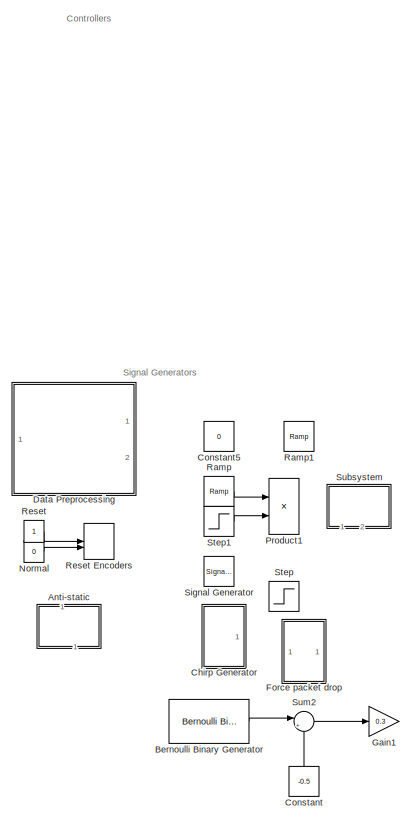
[diagram: root canvas - part 1/2, left side, full height]
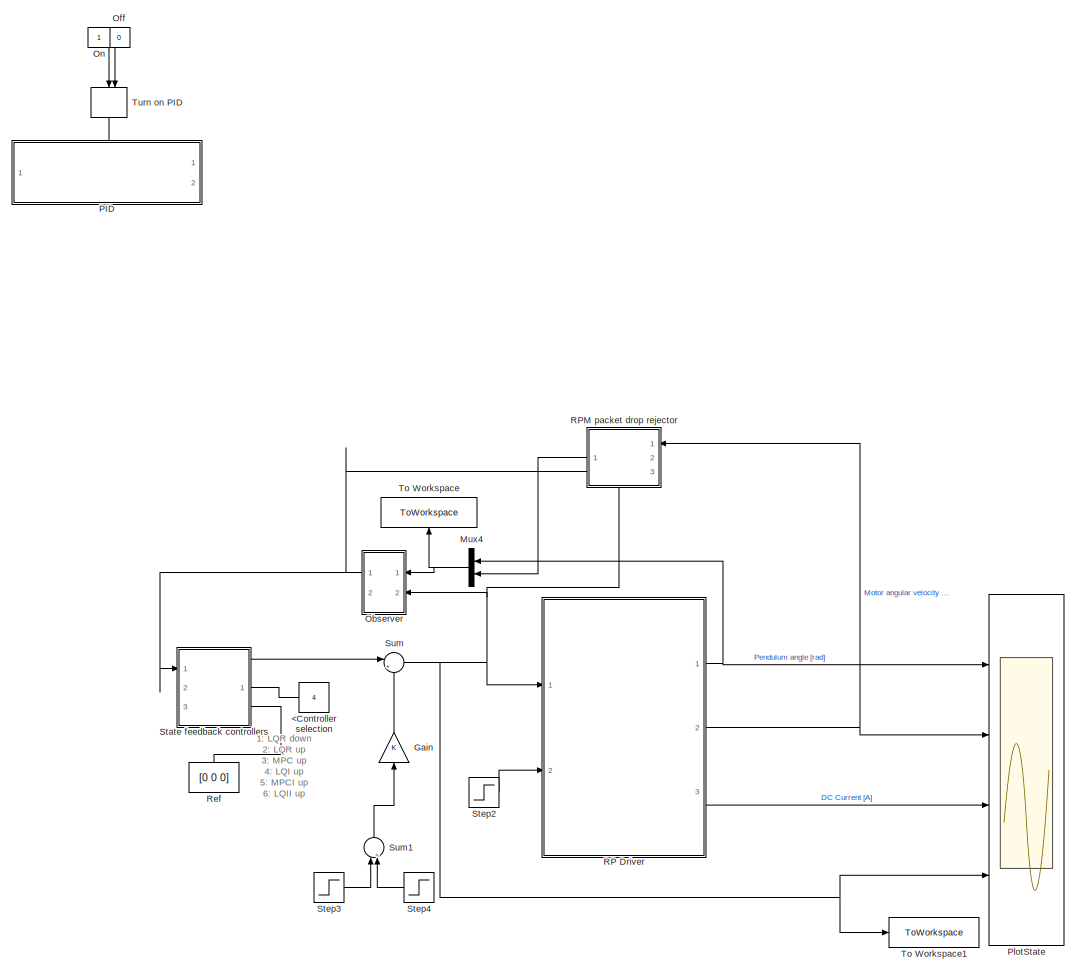
[diagram: root canvas - part 2/2, center side, full height]
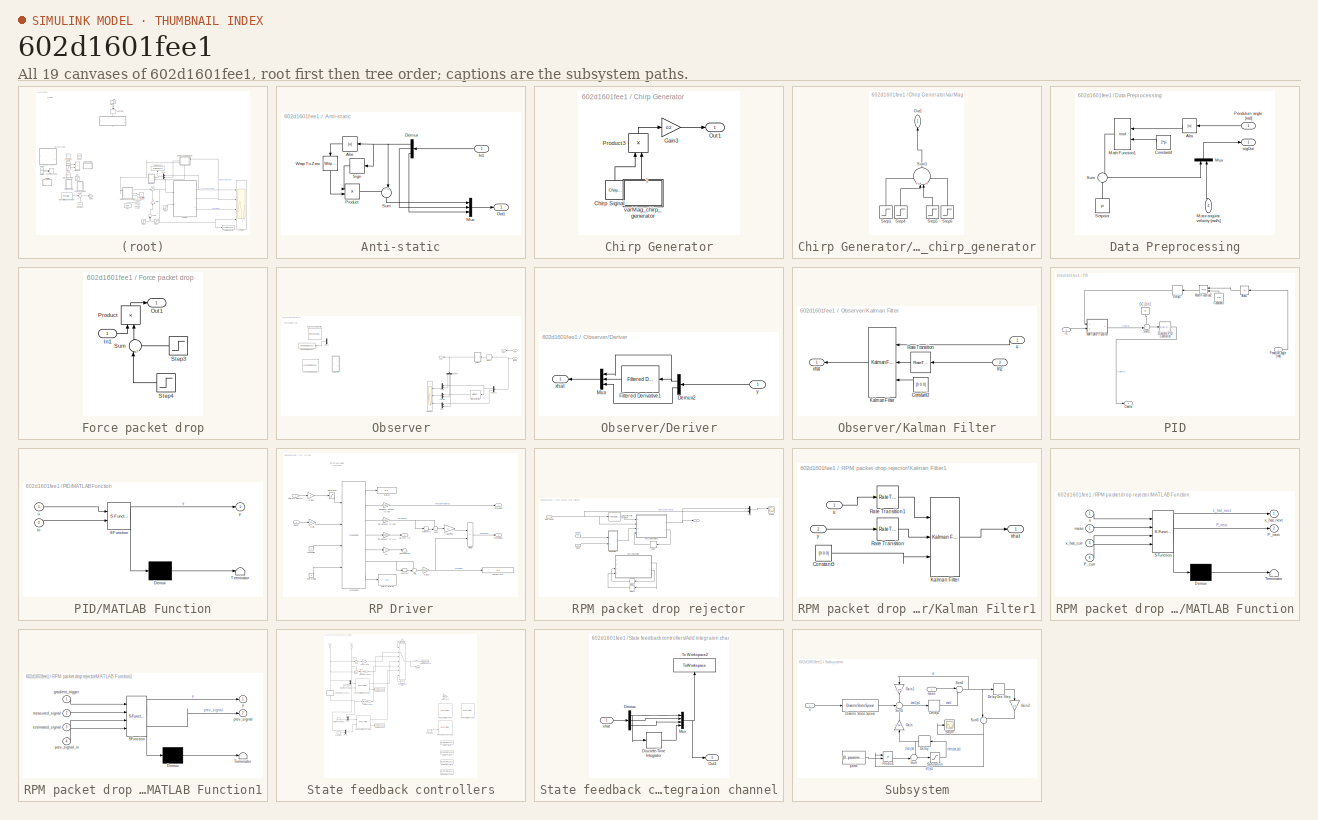
[diagram: thumbnail index - all 19 canvases of the model, root first then tree order]
MODEL slx_602d1601fee1
KIND model
CONFIG AbsTol = auto
CONFIG EnableMultiTasking = on
CONFIG FixedStep = h
CONFIG InitFcn = hwinit
CONFIG MaxStep = auto
CONFIG MinStep = auto
CONFIG PreLoadFcn = warning('off','MATLAB:dispatcher:InexactMatch');\n\n
CONFIG RelTol = 1e-3
CONFIG SampleTimeConstraint = Unconstrained
CONFIG SolverName = FixedStepDiscrete
CONFIG StartTime = 0.0
CONFIG StopTime = 140
BLOCK [Constant] <Controller selection
  NameLocation = top
  Value = 4
BLOCK [SubSystem] Anti-static
  Commented = through
  NameLocation = left
  Ports = [1, 1]
  RequestExecContextInheritance = off
BLOCK [Abs] Anti-static/Abs
  NameLocation = top
  SaturateOnIntegerOverflow = off
BLOCK [Demux] Anti-static/Demux
  NameLocation = top
  Outputs = 3
  Ports = [1, 3]
BLOCK [Inport] Anti-static/In1
BLOCK [Mux] Anti-static/Mux
  DisplayOption = bar
  Inputs = 3
  Ports = [3, 1]
BLOCK [Outport] Anti-static/Out1
BLOCK [Product] Anti-static/Product
  Ports = [2, 1]
BLOCK [Signum] Anti-static/Sign
  NameLocation = top
BLOCK [Sum] Anti-static/Sum
  Inputs = -+|
  NameLocation = left
  Ports = [2, 1]
BLOCK [Reference] Anti-static/Wrap To Zero  REF=simulink/Discontinuities/Wrap To Zero
  NameLocation = left
  Ports = [1, 1]
  SourceBlock = simulink/Discontinuities/Wrap To Zero
  SourceProductBaseCode = SL
  SourceType = Wrap To Zero
BLOCK [Reference] Bernoulli Binary Generator  REF=commrandsrc3/Bernoulli Binary
Generator
  Commented = on
  Ports = [0, 1]
  SourceBlock = commrandsrc3/Bernoulli Binary\nGenerator
  SourceProductBaseCode = CM
  SourceType = Bernoulli Binary Generator
BLOCK [SubSystem] Chirp Generator
  Commented = on
  Ports = [0, 1]
  RequestExecContextInheritance = off
BLOCK [Reference] Chirp Generator/Chirp Signal  REF=simulink/Sources/Chirp Signal
  NameLocation = right
  Ports = [0, 1]
  SourceBlock = simulink/Sources/Chirp Signal
  SourceProductBaseCode = SL
  SourceType = chirp
BLOCK [Gain] Chirp Generator/Gain3
  Gain = 0.2
BLOCK [Outport] Chirp Generator/Out1
BLOCK [Product] Chirp Generator/Product3
  NameLocation = right
  Ports = [2, 1]
BLOCK [SubSystem] Chirp Generator/varMag_chirp_generator
  NameLocation = right
  Ports = [0, 1]
  RequestExecContextInheritance = off
BLOCK [Outport] Chirp Generator/varMag_chirp_generator/Out1
  NameLocation = right
BLOCK [Step] Chirp Generator/varMag_chirp_generator/Step1
  After = 0.3
  Before = 1
  NameLocation = right
  SampleTime = h
  Time = 45
BLOCK [Step] Chirp Generator/varMag_chirp_generator/Step4
  After = 0.7
  NameLocation = right
  SampleTime = h
  Time = 50
BLOCK [Step] Chirp Generator/varMag_chirp_generator/Step5
  After = -0.6
  NameLocation = right
  SampleTime = h
  Time = 60
BLOCK [Step] Chirp Generator/varMag_chirp_generator/Step6
  After = 0
  NameLocation = right
  SampleTime = h
  Time = 65
BLOCK [Sum] Chirp Generator/varMag_chirp_generator/Sum1
  Inputs = ++|++
  NameLocation = right
  Ports = [4, 1]
BLOCK [Constant] Constant
  Commented = on
  NameLocation = right
  Value = -0.5
BLOCK [Constant] Constant5
  Commented = on
  Value = 0
BLOCK [SubSystem] Data Preprocessing
  Commented = on
  NameLocation = top
  Ports = [2, 1]
  RequestExecContextInheritance = off
BLOCK [Abs] Data Preprocessing/Abs
  NameLocation = top
  SaturateOnIntegerOverflow = off
BLOCK [Constant] Data Preprocessing/Constant4
  NameLocation = top
  Value = 2*pi
BLOCK [Math] Data Preprocessing/Math Function1
  NameLocation = top
  Operator = mod
  Ports = [2, 1]
BLOCK [Inport] Data Preprocessing/Motor angular velocity [rad//s]
  NameLocation = right
  Port = 2
BLOCK [Mux] Data Preprocessing/Mux
  DisplayOption = bar
  Inputs = 2
  NameLocation = right
  Ports = [2, 1]
BLOCK [Inport] Data Preprocessing/Pendulum angle [rad]
  NameLocation = top
BLOCK [Constant] Data Preprocessing/Setpoint
  NameLocation = right
  Value = pi
BLOCK [Sum] Data Preprocessing/Sum
  Inputs = -||+
  Ports = [2, 1]
BLOCK [Outport] Data Preprocessing/sigOut
BLOCK [SubSystem] Force packet drop
  Commented = through
  NameLocation = top
  Ports = [1, 1]
  RequestExecContextInheritance = off
BLOCK [Inport] Force packet drop/In1
BLOCK [Outport] Force packet drop/Out1
BLOCK [Product] Force packet drop/Product
  NameLocation = right
  Ports = [2, 1]
BLOCK [Step] Force packet drop/Step3
  NameLocation = top
  SampleTime = 0
  Time = 10+7*h
BLOCK [Step] Force packet drop/Step4
  After = 0
  Before = 1
  NameLocation = top
  SampleTime = 0
  Time = 10
BLOCK [Sum] Force packet drop/Sum
  Inputs = |++
  NameLocation = right
  Ports = [2, 1]
BLOCK [Gain] Gain
  NameLocation = right
BLOCK [Gain] Gain1
  Commented = on
  Gain = 0.3
BLOCK [Mux] Mux4
  DisplayOption = bar
  Inputs = 2
  NameLocation = top
  Ports = [2, 1]
BLOCK [Constant] Normal
  Commented = on
  Value = 0
BLOCK [SubSystem] Observer
  Ports = [2, 2]
  RequestExecContextInheritance = off
BLOCK [Delay] Observer/Delay1
  DelayLength = 1
  InitialCondition = 0
  InputPortMap = u0
  NameLocation = top
  Ports = [1, 1]
BLOCK [Demux] Observer/Demux
  NameLocation = left
  Outputs = 3
  Ports = [1, 3]
BLOCK [Demux] Observer/Demux1
  NameLocation = top
  Outputs = 2
  Ports = [1, 2]
BLOCK [SubSystem] Observer/Deriver
  NameLocation = top
  Ports = [1, 1]
  RequestExecContextInheritance = off
BLOCK [Demux] Observer/Deriver/Demux2
  NameLocation = top
  Outputs = 2
  Ports = [1, 2]
BLOCK [Reference] Observer/Deriver/Filtered Derivative1  REF=eeGeneralControl/Filtered Derivative
(Discrete or Continuous)
  Ports = [1, 1]
  SourceBlock = eeGeneralControl/Filtered Derivative\n(Discrete or Continuous)
  SourceProductBaseCode = PS
  SourceType = Filtered Derivative (Discrete or Continuous)
BLOCK [Mux] Observer/Deriver/Mux
  DisplayOption = bar
  Inputs = 3
  NameLocation = top
  Ports = [3, 1]
BLOCK [Outport] Observer/Deriver/xhat
BLOCK [Inport] Observer/Deriver/y
BLOCK [DiscreteStateSpace] Observer/Discrete State-Space
  A = sysObserver.A
  B = sysObserver.B
  C = sysObserver.C
  Commented = on
  D = sysObserver.D
  NameLocation = top
  SampleTime = h
BLOCK [Reference] Observer/Extended Kalman Filter  REF=sharedTrackingLibrary/Extended Kalman Filter
  Commented = on
  Ports = [1, 1]
  SourceBlock = sharedTrackingLibrary/Extended Kalman Filter
  SourceProductBaseCode = AE,PW,CT,DR,TF,ID,LP,NV,AR,RO,RR,UV,VE
  SourceType = Extended Kalman Filter
BLOCK [Reference] Observer/Filtered Derivative  REF=eeGeneralControl/Filtered Derivative
(Discrete or Continuous)
  Ports = [1, 1]
  SourceBlock = eeGeneralControl/Filtered Derivative\n(Discrete or Continuous)
  SourceProductBaseCode = PS
  SourceType = Filtered Derivative (Discrete or Continuous)
BLOCK [SubSystem] Observer/Kalman Filter
  Commented = on
  NameLocation = top
  Ports = [2, 1]
  RequestExecContextInheritance = off
BLOCK [Constant] Observer/Kalman Filter/Constant3
  NameLocation = top
  SampleTime = h
  Value = [0 0 0]
BLOCK [Inport] Observer/Kalman Filter/In2
  Port = 2
BLOCK [Reference] Observer/Kalman Filter/Kalman Filter  REF=ctrlSharedLib/Kalman Filter
  NameLocation = top
  Ports = [3, 1]
  SourceBlock = ctrlSharedLib/Kalman Filter
  SourceProductBaseCode = CT,ID
  SourceType = ctrlKalmanFilter
BLOCK [RateTransition] Observer/Kalman Filter/Rate Transition
  NameLocation = top
  OutPortSampleTime = h
BLOCK [Inport] Observer/Kalman Filter/u
BLOCK [Outport] Observer/Kalman Filter/xhat
BLOCK [Reference] Observer/Luenberger Observer  REF=eeLuenbergerObserver/Luenberger Observer
  Commented = on
  NameLocation = top
  Ports = [2, 1]
  SourceBlock = eeLuenbergerObserver/Luenberger Observer
  SourceProductBaseCode = PS
  SourceType = Luenberger Observer
BLOCK [Mux] Observer/Mux1
  Commented = on
  DisplayOption = bar
  Inputs = 2
  NameLocation = top
  Ports = [2, 1]
BLOCK [Scope] Observer/Observer
  Commented = on
  Floating = off
  NameLocation = top
  NumInputPorts = 3
  Ports = [3]
  ScopeSpecificationString = Simulink.scopes.TimeScopeBlockCfg('CurrentConfiguration', extmgr.ConfigurationSet(extmgr.Configuration('Core','General UI',true),extmgr.Configuration('Core','Source UI',true),extmgr.Configuration('Sources','WiredSimulink',true,'DataLoggingVariableName','ScopeData1'),extmgr.Configuration('Visuals','Time Domain',true,'SerializedDisplays',{struct('MinYLimReal','-1.59444','MaxYLimReal','1.24635','YLab...<+2735ch>
BLOCK [Mux] Observer/Theta
  DisplayOption = bar
  Inputs = 2
  NameLocation = top
  Ports = [2, 1]
BLOCK [Mux] Observer/dPhi
  DisplayOption = bar
  Inputs = 2
  NameLocation = top
  Ports = [2, 1]
BLOCK [Mux] Observer/dTheta
  DisplayOption = bar
  Inputs = 2
  NameLocation = top
  Ports = [2, 1]
BLOCK [Inport] Observer/meas
BLOCK [Inport] Observer/u
  Port = 2
BLOCK [Outport] Observer/uOut
  NameLocation = top
  Port = 2
BLOCK [Outport] Observer/xhat
  NameLocation = top
BLOCK [Constant] Off
  Commented = on
  NameLocation = top
  Value = 0
BLOCK [Constant] On
  Commented = on
  NameLocation = top
BLOCK [SubSystem] PID
  Commented = on
  PortSchema = {"entries":[{"content":{"sides":[{"content":{"connectorIds":["In1"]},"type":"ConnectorPlacement.EquallySpacedRectSide","uuid":"f2fec2e3-226e-4957-a417-0defdc291ba5"},{"content":{"connectorIds":["Out1"],"side":"RIGHT"},"type":"ConnectorPlacement.EquallySpacedRectSide","uuid":"376d4e87-61ea-4bcd-a986-cfc18b67c5cf"},{"content":{"connectorIds":["In2"],"side":"TOP"},"type":"ConnectorPlacement.EquallySp...<+245ch>
  Ports = [2, 1]
  RequestExecContextInheritance = off
BLOCK [Abs] PID/Abs1
  NameLocation = top
  SaturateOnIntegerOverflow = off
BLOCK [Constant] PID/Constant3
  NameLocation = right
  Value = 2*pi
BLOCK [Outport] PID/Control
BLOCK [Constant] PID/DC_Ctrl1
  NameLocation = left
  Value = pi
BLOCK [Delay] PID/Delay1
  DelayLength = 1
  InitialCondition = 0
  InputPortMap = u0
  NameLocation = top
  Ports = [1, 1]
BLOCK [Reference] PID/Discrete PID Controller  REF=pid_lib/PID Controller
  Ports = [1, 1]
  SourceBlock = pid_lib/PID Controller
  SourceProductBaseCode = SL
  SourceType = PID 1dof
BLOCK [SubSystem] PID/MATLAB Function
  ErrorFcn = Stateflow.Translate.translate
  PermitHierarchicalResolution = ExplicitOnly
  Ports = [2, 1]
  RequestExecContextInheritance = off
  SFBlockType = MATLAB Function
  TreatAsAtomicUnit = on
BLOCK [Demux] PID/MATLAB Function/ Demux 
  Outputs = 1
  Ports = [1, 1]
BLOCK [S-Function] PID/MATLAB Function/ SFunction 
  EnableBusSupport = on
  FunctionName = sf_sfun
  PortCounts = [2 2]
  Ports = [2, 2]
  SFcnIsStateOwnerBlock = off
  SFunctionDeploymentMode = off
  Tag = Stateflow S-Function 1
BLOCK [Terminator] PID/MATLAB Function/ Terminator 
BLOCK [Inport] PID/MATLAB Function/io
  Port = 2
BLOCK [Inport] PID/MATLAB Function/u
BLOCK [Outport] PID/MATLAB Function/y
BLOCK [Math] PID/Math Function2
  NameLocation = top
  Operator = mod
  Ports = [2, 1]
BLOCK [Inport] PID/Pendulum angle [rad]
BLOCK [Sum] PID/Sum1
  Inputs = +-|
  Ports = [2, 1]
BLOCK [Inport] PID/io
  Port = 2
BLOCK [Scope] PlotState
  Floating = off
  NumInputPorts = 4
  Ports = [4]
  ScopeSpecificationString = Simulink.scopes.TimeScopeBlockCfg('CurrentConfiguration', extmgr.ConfigurationSet(extmgr.Configuration('Core','General UI',true),extmgr.Configuration('Core','Source UI',true),extmgr.Configuration('Sources','WiredSimulink',true,'DataLoggingVariableName','StateData','DataLoggingSaveFormat','StructureWithTime','DataLoggingMaxPoints','12000','DataLoggingDecimation','1','DataLoggingDecimateData',true),...<+3724ch>
BLOCK [Product] Product1
  Commented = on
  Ports = [2, 1]
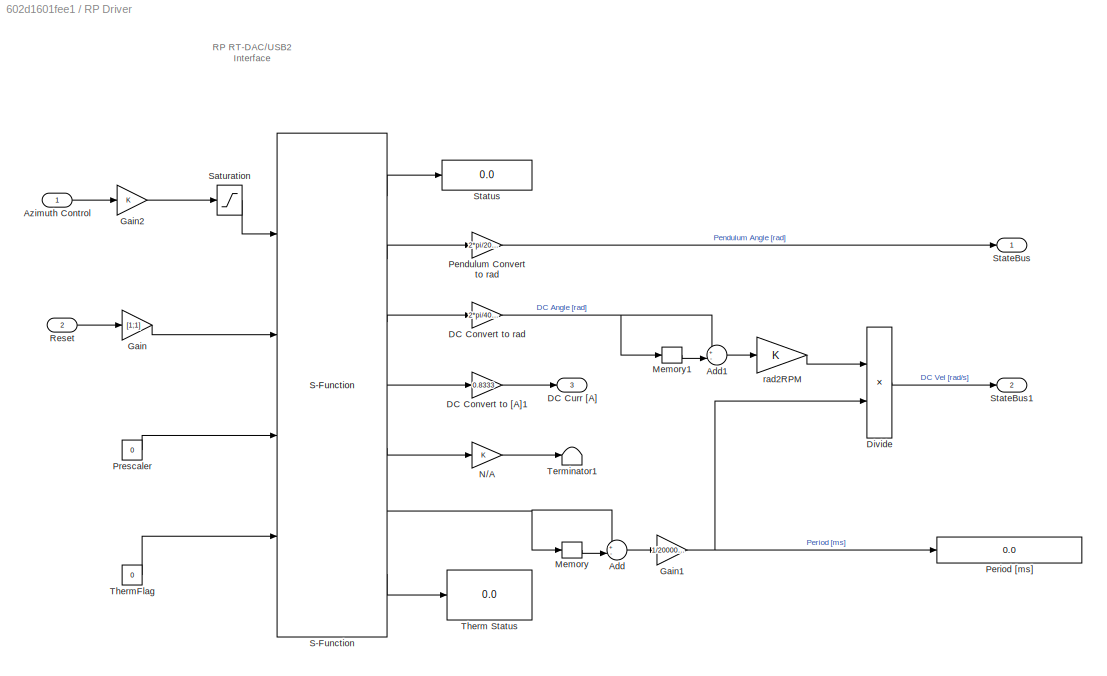
BLOCK [SubSystem] RP Driver
  Ports = [2, 3]
  RequestExecContextInheritance = off
BLOCK [Sum] RP Driver/Add
  Inputs = +-|
  Ports = [2, 1]
BLOCK [Sum] RP Driver/Add1
  Inputs = +-|
  Ports = [2, 1]
BLOCK [Inport] RP Driver/Azimuth Control
BLOCK [Gain] RP Driver/DC Convert to [A]1
  Gain = 0.8333
  OutDataTypeStr = Inherit: Same as input
  ParamDataTypeStr = Inherit: Same as input
  SaturateOnIntegerOverflow = on
BLOCK [Gain] RP Driver/DC Convert to rad
  Gain = 2*pi/4096
  OutDataTypeStr = Inherit: Same as input
  ParamDataTypeStr = Inherit: Same as input
  SaturateOnIntegerOverflow = on
BLOCK [Outport] RP Driver/DC Curr [A]
  Port = 3
  VectorParamsAs1DForOutWhenUnconnected = off
BLOCK [Product] RP Driver/Divide
  Inputs = */
  Ports = [2, 1]
BLOCK [Gain] RP Driver/Gain
  Gain = [1;1]
BLOCK [Gain] RP Driver/Gain1
  Gain = 1/20000000
BLOCK [Gain] RP Driver/Gain2
BLOCK [Memory] RP Driver/Memory
  NameLocation = top
BLOCK [Memory] RP Driver/Memory1
  NameLocation = top
BLOCK [Gain] RP Driver/N//A
  OutDataTypeStr = Inherit: Same as input
  ParamDataTypeStr = Inherit: Same as input
  SaturateOnIntegerOverflow = on
BLOCK [Gain] RP Driver/Pendulum Convert to rad
  Gain = 2*pi/20000
  OutDataTypeStr = Inherit: Same as input
  ParamDataTypeStr = Inherit: Same as input
  SaturateOnIntegerOverflow = on
BLOCK [Display] RP Driver/Period [ms]
  Decimation = 1
  Format = long
  Ports = [1]
BLOCK [Constant] RP Driver/Prescaler
  Value = 0
BLOCK [Inport] RP Driver/Reset
  Port = 2
BLOCK [S-Function] RP Driver/S-Function
  EnableBusSupport = off
  FunctionName = rtdacusb2_rpend_dd
  Parameters = 1, h
  Ports = [4, 7]
  SFcnIsStateOwnerBlock = off
  SFunctionDeploymentMode = off
BLOCK [Saturate] RP Driver/Saturation
  LowerLimit = -1
  UpperLimit = 1
BLOCK [Outport] RP Driver/StateBus
  VectorParamsAs1DForOutWhenUnconnected = off
BLOCK [Outport] RP Driver/StateBus1
  Port = 2
  VectorParamsAs1DForOutWhenUnconnected = off
BLOCK [Display] RP Driver/Status
  Decimation = 1
  Ports = [1]
BLOCK [Terminator] RP Driver/Terminator1
BLOCK [Display] RP Driver/Therm Status
  Decimation = 1
  Ports = [1]
BLOCK [Constant] RP Driver/ThermFlag
  Value = 0
BLOCK [Gain] RP Driver/rad2RPM
  OutDataTypeStr = Inherit: Same as input
  ParamDataTypeStr = Inherit: Same as input
  SaturateOnIntegerOverflow = on
BLOCK [SubSystem] RPM packet drop rejector
  NameLocation = top
  PortSchema = {"entries":[{"content":{"sides":[{"content":{"connectorIds":["In1"]},"type":"ConnectorPlacement.EquallySpacedRectSide","uuid":"dc71c52c-be7a-4309-9ef6-de56d2efa973"},{"content":{"connectorIds":["In3","Out1"],"side":"RIGHT"},"type":"ConnectorPlacement.EquallySpacedRectSide","uuid":"4ea731d9-e83e-45db-852e-b55f70ff1dcb"},{"content":{"connectorIds":[],"side":"TOP"},"type":"ConnectorPlacement.EquallyS...<+395ch>
  Ports = [3, 1]
  RequestExecContextInheritance = off
BLOCK [Reference] RPM packet drop rejector/Check Discrete Gradient  REF=simulink/Model
Verification/Check
Discrete Gradient
  Description = | du / dt | < 50
  Ports = [1, 1]
  SourceBlock = simulink/Model\nVerification/Check\nDiscrete Gradient
  SourceProductBaseCode = SL
  SourceType = Checks_Gradient
BLOCK [Inport] RPM packet drop rejector/Control
  Port = 2
BLOCK [Delay] RPM packet drop rejector/Delay
  DelayLength = 1
  InitialCondition = 0
  InputPortMap = u0
  NameLocation = top
  Ports = [1, 1]
BLOCK [Delay] RPM packet drop rejector/Delay1
  Commented = on
  DelayLength = 1
  InputPortMap = u0
  NameLocation = top
  Ports = [1, 1]
BLOCK [Delay] RPM packet drop rejector/Delay2
  Commented = on
  DelayLength = 1
  InputPortMap = u0
  NameLocation = top
  Ports = [1, 1]
BLOCK [SubSystem] RPM packet drop rejector/Kalman Filter1
  Ports = [2, 1]
  RequestExecContextInheritance = off
BLOCK [Constant] RPM packet drop rejector/Kalman Filter1/Constant3
  SampleTime = h
  Value = [0 0 0]
BLOCK [Reference] RPM packet drop rejector/Kalman Filter1/Kalman Filter  REF=ctrlSharedLib/Kalman Filter
  Ports = [3, 1]
  SourceBlock = ctrlSharedLib/Kalman Filter
  SourceProductBaseCode = CT,ID
  SourceType = ctrlKalmanFilter
BLOCK [RateTransition] RPM packet drop rejector/Kalman Filter1/Rate Transition
  OutPortSampleTime = h
BLOCK [RateTransition] RPM packet drop rejector/Kalman Filter1/Rate Transition1
  OutPortSampleTime = h
BLOCK [Inport] RPM packet drop rejector/Kalman Filter1/u
  NameLocation = top
BLOCK [Outport] RPM packet drop rejector/Kalman Filter1/xhat
  NameLocation = top
BLOCK [Inport] RPM packet drop rejector/Kalman Filter1/y
  NameLocation = top
  Port = 2
BLOCK [SubSystem] RPM packet drop rejector/MATLAB Function
  Commented = on
  ErrorFcn = Stateflow.Translate.translate
  PermitHierarchicalResolution = ExplicitOnly
  Ports = [4, 2]
  RequestExecContextInheritance = off
  SFBlockType = MATLAB Function
  TreatAsAtomicUnit = on
BLOCK [Demux] RPM packet drop rejector/MATLAB Function/ Demux 
  Outputs = 1
  Ports = [1, 1]
BLOCK [S-Function] RPM packet drop rejector/MATLAB Function/ SFunction 
  EnableBusSupport = on
  FunctionName = sf_sfun
  PortCounts = [4 3]
  Ports = [4, 3]
  SFcnIsStateOwnerBlock = off
  SFunctionDeploymentMode = off
  Tag = Stateflow S-Function 2
BLOCK [Terminator] RPM packet drop rejector/MATLAB Function/ Terminator 
BLOCK [Inport] RPM packet drop rejector/MATLAB Function/P_curr
  Port = 4
BLOCK [Outport] RPM packet drop rejector/MATLAB Function/P_next
  Port = 2
BLOCK [Inport] RPM packet drop rejector/MATLAB Function/meas
  Port = 2
BLOCK [Inport] RPM packet drop rejector/MATLAB Function/u
BLOCK [Inport] RPM packet drop rejector/MATLAB Function/x_hat_curr
  Port = 3
BLOCK [Outport] RPM packet drop rejector/MATLAB Function/x_hat_next
BLOCK [SubSystem] RPM packet drop rejector/MATLAB Function1
  ErrorFcn = Stateflow.Translate.translate
  PermitHierarchicalResolution = ExplicitOnly
  Ports = [4, 2]
  RequestExecContextInheritance = off
  SFBlockType = MATLAB Function
  TreatAsAtomicUnit = on
BLOCK [Demux] RPM packet drop rejector/MATLAB Function1/ Demux 
  Outputs = 1
  Ports = [1, 1]
BLOCK [S-Function] RPM packet drop rejector/MATLAB Function1/ SFunction 
  EnableBusSupport = on
  FunctionName = sf_sfun
  PortCounts = [4 3]
  Ports = [4, 3]
  SFcnIsStateOwnerBlock = off
  SFunctionDeploymentMode = off
  Tag = Stateflow S-Function 3
BLOCK [Terminator] RPM packet drop rejector/MATLAB Function1/ Terminator 
BLOCK [Inport] RPM packet drop rejector/MATLAB Function1/estimated_signal
  Port = 3
BLOCK [Inport] RPM packet drop rejector/MATLAB Function1/gradient_trigger
BLOCK [Inport] RPM packet drop rejector/MATLAB Function1/measured_signal
  Port = 2
BLOCK [Outport] RPM packet drop rejector/MATLAB Function1/prev_signal
  Port = 2
BLOCK [Inport] RPM packet drop rejector/MATLAB Function1/prev_signal_in
  Port = 4
BLOCK [Outport] RPM packet drop rejector/MATLAB Function1/y
BLOCK [Inport] RPM packet drop rejector/Motor velocity
BLOCK [Mux] RPM packet drop rejector/Mux
  DisplayOption = bar
  Inputs = 2
  Ports = [2, 1]
BLOCK [Scope] RPM packet drop rejector/Scope
  Commented = on
  Floating = off
  NumInputPorts = 3
  Ports = [3]
  ScopeSpecificationString = Simulink.scopes.TimeScopeBlockCfg('CurrentConfiguration', extmgr.ConfigurationSet(extmgr.Configuration('Core','General UI',true),extmgr.Configuration('Core','Source UI',true),extmgr.Configuration('Sources','WiredSimulink',true,'DataLoggingVariableName','ScopeData1'),extmgr.Configuration('Visuals','Time Domain',true,'SerializedDisplays',{struct('MinYLimReal','-299.73824','MaxYLimReal','-237.96449',...<+1505ch>
BLOCK [Inport] RPM packet drop rejector/meas
  Port = 3
BLOCK [Outport] RPM packet drop rejector/y
BLOCK [Reference] Ramp  REF=simulink/Sources/Ramp
  Commented = on
  Ports = [0, 1]
  SourceBlock = simulink/Sources/Ramp
  SourceProductBaseCode = SL
  SourceType = Ramp
BLOCK [Reference] Ramp1  REF=simulink/Sources/Ramp
  Commented = on
  Ports = [0, 1]
  SourceBlock = simulink/Sources/Ramp
  SourceProductBaseCode = SL
  SourceType = Ramp
BLOCK [Constant] Ref
  NameLocation = left
  Value = [0 0 0]
BLOCK [Constant] Reset
  Commented = on
  NameLocation = top
BLOCK [ManualSwitch] Reset Encoders
  Commented = on
  CurrentSetting = 0
BLOCK [SignalGenerator] Signal Generator
  Amplitude = 0.5
  Commented = on
  Frequency = 0.1
  Ports = [0, 1]
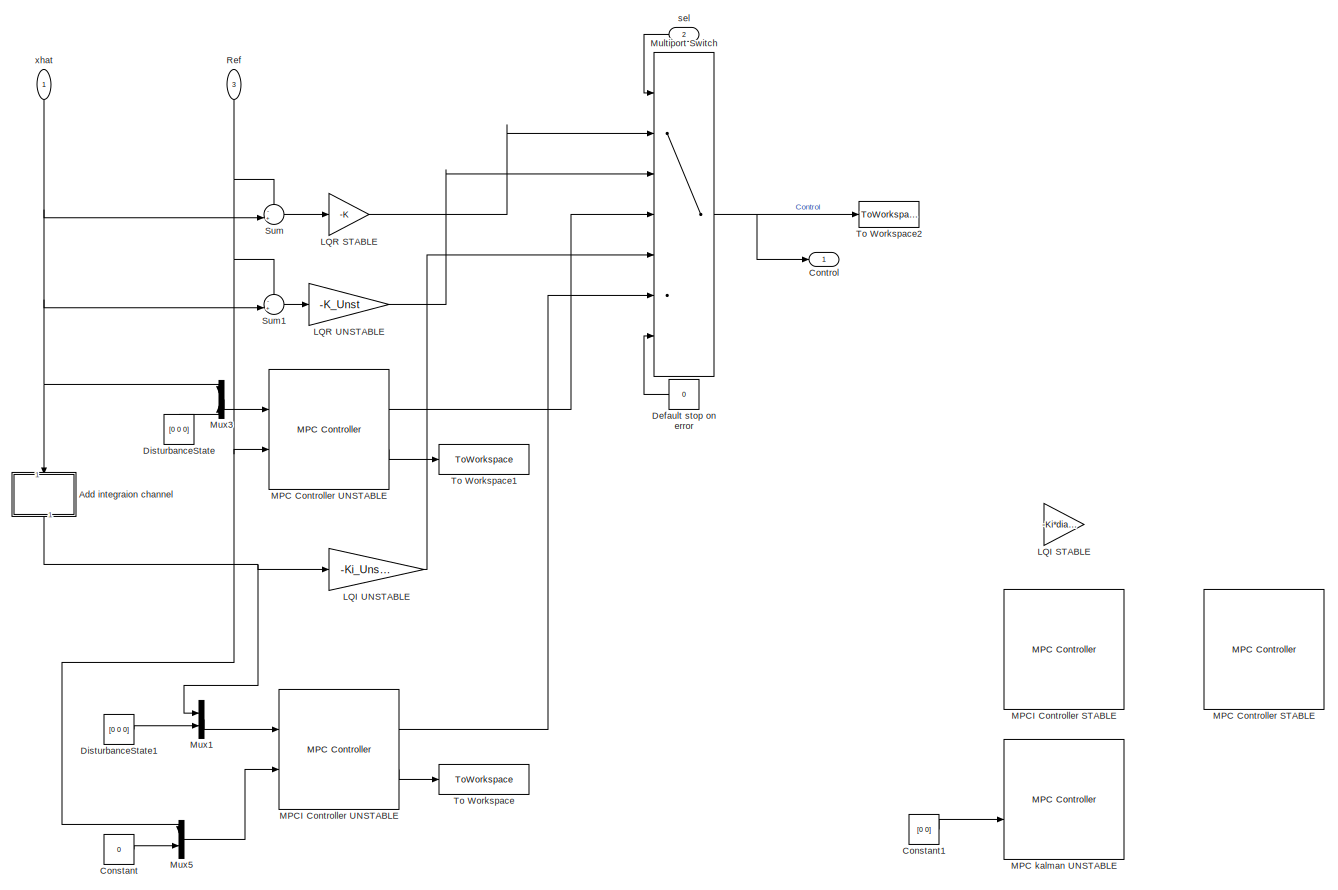
[diagram: State feedback controllers - part 1/2, full width, middle band]
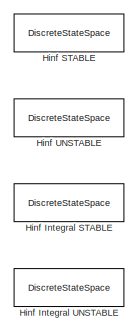
[diagram: State feedback controllers - part 2/2, bottom right region]
BLOCK [SubSystem] State feedback controllers
  PortSchema = {"entries":[{"content":{"sides":[{"content":{"connectorIds":["In1"]},"type":"ConnectorPlacement.EquallySpacedRectSide","uuid":"50f77728-1820-4c1e-b55e-992377a2ac74"},{"content":{"connectorIds":["Out1","In2","In3"],"side":"RIGHT"},"type":"ConnectorPlacement.EquallySpacedRectSide","uuid":"85e2483e-83dd-4c22-9320-33a68cb16c11"},{"content":{"connectorIds":[],"side":"TOP"},"type":"ConnectorPlacement.Eq...<+252ch>
  Ports = [3, 1]
  RequestExecContextInheritance = off
BLOCK [SubSystem] State feedback controllers/Add integraion channel
  NameLocation = left
  Ports = [1, 1]
  RequestExecContextInheritance = off
BLOCK [Demux] State feedback controllers/Add integraion channel/Demux
  Outputs = 3
  Ports = [1, 3]
BLOCK [DiscreteIntegrator] State feedback controllers/Add integraion channel/Discrete-Time Integrator
  ICPrevOutput = DiscIntNeverNeededParam
  ICPrevScaledInput = DiscIntNeverNeededParam
  InitialConditionSetting = Auto
  LimitOutput = on
  LowerSaturationLimit = -1
  Ports = [1, 1]
  SampleTime = -1
  UpperSaturationLimit = 1
  gainval = 1
BLOCK [Mux] State feedback controllers/Add integraion channel/Mux
  DisplayOption = bar
  Ports = [4, 1]
BLOCK [Outport] State feedback controllers/Add integraion channel/Out1
BLOCK [ToWorkspace] State feedback controllers/Add integraion channel/To Workspace2
  FixptAsFi = on
  MaxDataPoints = inf
  NameLocation = right
  Ports = [1]
  SampleTime = h
  Save2DSignal = 2-D array (concatenate along first dimension)
  VariableName = MeasFull
BLOCK [Inport] State feedback controllers/Add integraion channel/xhat
BLOCK [Constant] State feedback controllers/Constant
  Value = 0
BLOCK [Constant] State feedback controllers/Constant1
  Commented = on
  Value = [0 0]
BLOCK [Outport] State feedback controllers/Control
BLOCK [Constant] State feedback controllers/Default stop on error
  Value = 0
BLOCK [Constant] State feedback controllers/DisturbanceState
  NameLocation = right
  Value = [0 0 0]
BLOCK [Constant] State feedback controllers/DisturbanceState1
  Value = [0 0 0]
BLOCK [DiscreteStateSpace] State feedback controllers/Hinf Integral STABLE
  A = HinfI.A
  B = HinfI.B
  C = HinfI.C
  Commented = on
  D = HinfI.D
  SampleTime = -1
BLOCK [DiscreteStateSpace] State feedback controllers/Hinf Integral UNSTABLE
  A = HinfUnstI.A
  B = HinfUnstI.B
  C = HinfUnstI.C
  Commented = on
  D = HinfUnstI.D
  SampleTime = -1
BLOCK [DiscreteStateSpace] State feedback controllers/Hinf STABLE
  A = Hinf.A
  B = Hinf.B
  C = Hinf.C
  Commented = on
  D = Hinf.D
  SampleTime = -1
BLOCK [DiscreteStateSpace] State feedback controllers/Hinf UNSTABLE
  A = HinfUnst.A
  B = HinfUnst.B
  C = HinfUnst.C
  Commented = on
  D = HinfUnst.D
  SampleTime = -1
BLOCK [Gain] State feedback controllers/LQI STABLE
  Commented = on
  Gain = -Ki*diag([1, 1, 1, 35])
  Multiplication = Matrix(K*u)
BLOCK [Gain] State feedback controllers/LQI UNSTABLE
  Gain = -Ki_Unst*diag([1, 1, 1, 35])
  Multiplication = Matrix(K*u)
BLOCK [Gain] State feedback controllers/LQR STABLE
  Gain = -K
  Multiplication = Matrix(K*u)
BLOCK [Gain] State feedback controllers/LQR UNSTABLE
  Gain = -K_Unst
  Multiplication = Matrix(K*u)
BLOCK [Reference] State feedback controllers/MPC Controller STABLE  REF=mpclib/MPC Controller  (lib defined in mdl_ae329e0e0455)
  Commented = on
  Ports = [2, 2]
  SCDEnableBlockLinearizationSpecification = on
  SourceBlock = mpclib/MPC Controller
  SourceProductBaseCode = MP
  SourceType = MPC
BLOCK [Reference] State feedback controllers/MPC Controller UNSTABLE  REF=mpclib/MPC Controller  (lib defined in mdl_ae329e0e0455)
  Ports = [2, 2]
  SCDEnableBlockLinearizationSpecification = on
  SourceBlock = mpclib/MPC Controller
  SourceProductBaseCode = MP
  SourceType = MPC
BLOCK [Reference] State feedback controllers/MPC kalman UNSTABLE  REF=mpclib/MPC Controller  (lib defined in mdl_ae329e0e0455)
  Commented = on
  Ports = [2, 2]
  SCDEnableBlockLinearizationSpecification = on
  SourceBlock = mpclib/MPC Controller
  SourceProductBaseCode = MP
  SourceType = MPC
BLOCK [Reference] State feedback controllers/MPCI Controller STABLE  REF=mpclib/MPC Controller  (lib defined in mdl_ae329e0e0455)
  Commented = on
  Ports = [2, 1]
  SCDEnableBlockLinearizationSpecification = on
  SourceBlock = mpclib/MPC Controller
  SourceProductBaseCode = MP
  SourceType = MPC
BLOCK [Reference] State feedback controllers/MPCI Controller UNSTABLE  REF=mpclib/MPC Controller  (lib defined in mdl_ae329e0e0455)
  Ports = [2, 2]
  SCDEnableBlockLinearizationSpecification = on
  SourceBlock = mpclib/MPC Controller
  SourceProductBaseCode = MP
  SourceType = MPC
BLOCK [MultiPortSwitch] State feedback controllers/Multiport Switch
  InputSameDT = off
  Inputs = 6
  Ports = [7, 1]
  SaturateOnIntegerOverflow = off
BLOCK [Mux] State feedback controllers/Mux1
  DisplayOption = bar
  Inputs = 2
  Ports = [2, 1]
BLOCK [Mux] State feedback controllers/Mux3
  DisplayOption = bar
  Inputs = 2
  Ports = [2, 1]
BLOCK [Mux] State feedback controllers/Mux5
  DisplayOption = bar
  Inputs = 2
  Ports = [2, 1]
BLOCK [Inport] State feedback controllers/Ref
  NameLocation = top
  Port = 3
BLOCK [Sum] State feedback controllers/Sum
  Inputs = -+|
  Ports = [2, 1]
BLOCK [Sum] State feedback controllers/Sum1
  Inputs = -+|
  Ports = [2, 1]
BLOCK [ToWorkspace] State feedback controllers/To Workspace
  FixptAsFi = on
  MaxDataPoints = inf
  Ports = [1]
  SampleTime = -1
  VariableName = MPCI_prediction
BLOCK [ToWorkspace] State feedback controllers/To Workspace1
  FixptAsFi = on
  MaxDataPoints = inf
  Ports = [1]
  SampleTime = -1
  VariableName = MPC_prediction
BLOCK [ToWorkspace] State feedback controllers/To Workspace2
  FixptAsFi = on
  MaxDataPoints = inf
  Ports = [1]
  SampleTime = h
  Save2DSignal = 2-D array (concatenate along first dimension)
  SaveFormat = Structure With Time
  VariableName = CtrlIn
BLOCK [Inport] State feedback controllers/sel
  NameLocation = top
  Port = 2
BLOCK [Inport] State feedback controllers/xhat
  NameLocation = top
BLOCK [Step] Step
  Commented = on
  NameLocation = right
  SampleTime = h
  Time = 1.5
BLOCK [Step] Step1
  After = 0
  Before = 1
  Commented = on
  SampleTime = h
  Time = 30
BLOCK [Step] Step2
  After = 0
  Before = 1
  SampleTime = 0
  Time = h
BLOCK [Step] Step3
  SampleTime = 0
  Time = 2
BLOCK [Step] Step4
  After = -1
  NameLocation = top
  SampleTime = 0
  Time = 2.2
BLOCK [SubSystem] Subsystem
  Commented = on
  NameLocation = right
  Ports = [2]
  RequestExecContextInheritance = off
BLOCK [Delay] Subsystem/Delay
  DelayLength = 1
  InitialCondition = 0
  InputPortMap = u0
  NameLocation = top
  Ports = [1, 1]
BLOCK [Delay] Subsystem/Delay One Step
  DelayLength = 1
  InputPortMap = u0
  Ports = [1, 1]
BLOCK [Delay] Subsystem/Delay1
  Commented = through
  DelayLength = 1
  InitialCondition = 0
  InputPortMap = u0
  Ports = [1, 1]
BLOCK [DiscreteStateSpace] Subsystem/Discrete State-Space
  A = sys.A
  B = sys.B
  C = sys.C
  D = sys.D
  SampleTime = h
BLOCK [Gain] Subsystem/Gain
  Gain = [0 params.m*9.81*params.l/params.Ip 0]
  NameLocation = right
BLOCK [Gain] Subsystem/Gain1
  Gain = -0.3*eye(3)
  Multiplication = Matrix(K*u)
  NameLocation = left
BLOCK [Gain] Subsystem/Gain2
  Gain = -0.9
  NameLocation = left
BLOCK [Product] Subsystem/Product
  Multiplication = Matrix(*)
  Ports = [2, 1]
BLOCK [Saturate] Subsystem/Saturation
  LowerLimit = -deg2rad(2)
  UpperLimit = deg2rad(2)
BLOCK [Scope] Subsystem/Scope
  Floating = off
  NumInputPorts = 1
  Ports = [1]
  ScopeSpecificationString = Simulink.scopes.TimeScopeBlockCfg('CurrentConfiguration', extmgr.ConfigurationSet(extmgr.Configuration('Core','General UI',true),extmgr.Configuration('Core','Source UI',true),extmgr.Configuration('Sources','WiredSimulink',true,'DataLoggingVariableName','ScopeData2'),extmgr.Configuration('Visuals','Time Domain',true,'SerializedDisplays',{struct('MinYLimReal','-0.51832','MaxYLimReal','0.29179','YLab...<+1463ch>
BLOCK [Sum] Subsystem/Sum
  Inputs = ++|
  Ports = [2, 1]
BLOCK [Sum] Subsystem/Sum1
  Inputs = +++
  Ports = [3, 1]
BLOCK [Sum] Subsystem/Sum2
  Inputs = |+-
  Ports = [2, 1]
BLOCK [Sum] Subsystem/Sum3
  Inputs = |++
  NameLocation = left
  Ports = [2, 1]
BLOCK [Constant] Subsystem/gamZ
  Value = [0, params.m*params.l*9.81/params.Ip, 0] .* 1/(1e-6 + abs(params.m*params.l*9.81/params.Ip)^2)
BLOCK [Inport] Subsystem/meas
BLOCK [Inport] Subsystem/u
  Port = 2
BLOCK [Sum] Sum
  Inputs = |++
  Ports = [2, 1]
BLOCK [Sum] Sum1
  Inputs = |++|
  NameLocation = right
  Ports = [2, 1]
BLOCK [Sum] Sum2
  Commented = on
  Inputs = |++
  Ports = [2, 1]
BLOCK [ToWorkspace] To Workspace
  FixptAsFi = on
  MaxDataPoints = inf
  NameLocation = right
  Ports = [1]
  SampleTime = h
  Save2DSignal = 2-D array (concatenate along first dimension)
  VariableName = Meas
BLOCK [ToWorkspace] To Workspace1
  FixptAsFi = on
  MaxDataPoints = inf
  Ports = [1]
  SampleTime = h
  Save2DSignal = 2-D array (concatenate along first dimension)
  SaveFormat = Structure With Time
  VariableName = CtrlInDist
BLOCK [ManualSwitch] Turn on PID
  Commented = on
  NameLocation = left
ANNOTATION (root): 1: LQR down 2: LQR up 3: MPC up 4: LQI up 5: MPCI up 6: LQII up
ANNOTATION (root): Controllers
ANNOTATION (root): Signal Generators
ANNOTATION Observer: Observer Graveyard
ANNOTATION RP Driver: RP RT-DAC/USB2 Interface
LINE <Controller selection:1 -> State feedback controllers:2
LINE Anti-static/Abs:1 -> Anti-static/Wrap To Zero:1
NET Anti-static/Demux:1 -> Anti-static/Abs:1, Anti-static/Sign:1, Anti-static/Sum:2
LINE Anti-static/Demux:2 -> Anti-static/Mux:2
LINE Anti-static/Demux:3 -> Anti-static/Mux:3
LINE Anti-static/In1:1 -> Anti-static/Demux:1
LINE Anti-static/Mux:1 -> Anti-static/Out1:1
LINE Anti-static/Product:1 -> Anti-static/Sum:1
LINE Anti-static/Sign:1 -> Anti-static/Product:1
LINE Anti-static/Sum:1 -> Anti-static/Mux:1
LINE Anti-static/Wrap To Zero:1 -> Anti-static/Product:2
LINE Bernoulli Binary Generator:1 -> Sum2:1
LINE Chirp Generator/Chirp Signal:1 -> Chirp Generator/Product3:1
LINE Chirp Generator/Gain3:1 -> Chirp Generator/Out1:1
LINE Chirp Generator/Product3:1 -> Chirp Generator/Gain3:1
LINE Chirp Generator/varMag_chirp_generator/Step1:1 -> Chirp Generator/varMag_chirp_generator/Sum1:1
LINE Chirp Generator/varMag_chirp_generator/Step4:1 -> Chirp Generator/varMag_chirp_generator/Sum1:2
LINE Chirp Generator/varMag_chirp_generator/Step5:1 -> Chirp Generator/varMag_chirp_generator/Sum1:3
LINE Chirp Generator/varMag_chirp_generator/Step6:1 -> Chirp Generator/varMag_chirp_generator/Sum1:4
LINE Chirp Generator/varMag_chirp_generator/Sum1:1 -> Chirp Generator/varMag_chirp_generator/Out1:1
LINE Chirp Generator/varMag_chirp_generator:1 -> Chirp Generator/Product3:2
LINE Constant:1 -> Sum2:2
LINE Data Preprocessing/Abs:1 -> Data Preprocessing/Math Function1:1
LINE Data Preprocessing/Constant4:1 -> Data Preprocessing/Math Function1:2
LINE Data Preprocessing/Math Function1:1 -> Data Preprocessing/Sum:1
LINE Data Preprocessing/Motor angular velocity [rad//s]:1 -> Data Preprocessing/Mux:2
LINE Data Preprocessing/Mux:1 -> Data Preprocessing/sigOut:1
LINE Data Preprocessing/Pendulum angle [rad]:1 -> Data Preprocessing/Abs:1
LINE Data Preprocessing/Setpoint:1 -> Data Preprocessing/Sum:2
LINE Data Preprocessing/Sum:1 -> Data Preprocessing/Mux:1
LINE Force packet drop/In1:1 -> Force packet drop/Product:1
LINE Force packet drop/Product:1 -> Force packet drop/Out1:1
LINE Force packet drop/Step3:1 -> Force packet drop/Sum:2
LINE Force packet drop/Step4:1 -> Force packet drop/Sum:1
LINE Force packet drop/Sum:1 -> Force packet drop/Product:2
LINE Gain:1 -> Sum:2
NET Mux4:1 -> Observer:1, To Workspace:1
LINE Normal:1 -> Reset Encoders:2
LINE Observer/Delay1:1 -> Observer/Deriver:1
NET Observer/Demux1:1 -> Observer/Filtered Derivative:1, Observer/Theta:1
LINE Observer/Demux1:2 -> Observer/dPhi:1
LINE Observer/Demux:1 -> Observer/Theta:2
LINE Observer/Demux:2 -> Observer/dTheta:2
LINE Observer/Demux:3 -> Observer/dPhi:2
NET Observer/Deriver/Demux2:1 -> Observer/Deriver/Filtered Derivative1:1, Observer/Deriver/Mux:1
LINE Observer/Deriver/Demux2:2 -> Observer/Deriver/Mux:3
LINE Observer/Deriver/Filtered Derivative1:1 -> Observer/Deriver/Mux:2
LINE Observer/Deriver/Mux:1 -> Observer/Deriver/xhat:1
LINE Observer/Deriver/y:1 -> Observer/Deriver/Demux2:1
NET Observer/Deriver:1 -> Observer/Demux:1, Observer/xhat:1
LINE Observer/Filtered Derivative:1 -> Observer/dTheta:1
LINE Observer/Kalman Filter/Constant3:1 -> Observer/Kalman Filter/Kalman Filter:3
LINE Observer/Kalman Filter/In2:1 -> Observer/Kalman Filter/Rate Transition:1
LINE Observer/Kalman Filter/Kalman Filter:1 -> Observer/Kalman Filter/xhat:1
LINE Observer/Kalman Filter/Rate Transition:1 -> Observer/Kalman Filter/Kalman Filter:2
LINE Observer/Kalman Filter/u:1 -> Observer/Kalman Filter/Kalman Filter:1
LINE Observer/Mux1:1 -> Observer/Discrete State-Space:1
LINE Observer/Theta:1 -> Observer/Observer:1
LINE Observer/dPhi:1 -> Observer/Observer:3
LINE Observer/dTheta:1 -> Observer/Observer:2
NET Observer/meas:1 -> Observer/Delay1:1, Observer/Demux1:1
LINE Observer/u:1 -> Observer/uOut:1
NET Observer:1 -> RPM packet drop rejector:3, State feedback controllers:1
LINE Off:1 -> Turn on PID:2
LINE On:1 -> Turn on PID:1
LINE PID/Abs1:1 -> PID/Math Function2:1
LINE PID/Constant3:1 -> PID/Math Function2:2
LINE PID/DC_Ctrl1:1 -> PID/Sum1:1
LINE PID/Delay1:1 -> PID/MATLAB Function:1
LINE PID/Discrete PID Controller:1 -> PID/Control:1
LINE PID/MATLAB Function:1 -> PID/Sum1:2
LINE PID/Math Function2:1 -> PID/Delay1:1
LINE PID/Pendulum angle [rad]:1 -> PID/Abs1:1
LINE PID/Sum1:1 -> PID/Discrete PID Controller:1
LINE PID/io:1 -> PID/MATLAB Function:2
LINE RP Driver/Add1:1 -> RP Driver/rad2RPM:1
LINE RP Driver/Add:1 -> RP Driver/Gain1:1
LINE RP Driver/Azimuth Control:1 -> RP Driver/Gain2:1
LINE RP Driver/DC Convert to [A]1:1 -> RP Driver/DC Curr [A]:1
NET RP Driver/DC Convert to rad:1 -> RP Driver/Add1:1, RP Driver/Memory1:1
LINE RP Driver/Divide:1 -> RP Driver/StateBus1:1
NET RP Driver/Gain1:1 -> RP Driver/Divide:2, RP Driver/Period [ms]:1
LINE RP Driver/Gain2:1 -> RP Driver/Saturation:1
LINE RP Driver/Gain:1 -> RP Driver/S-Function:2
LINE RP Driver/Memory1:1 -> RP Driver/Add1:2
LINE RP Driver/Memory:1 -> RP Driver/Add:2
LINE RP Driver/N//A:1 -> RP Driver/Terminator1:1
LINE RP Driver/Pendulum Convert to rad:1 -> RP Driver/StateBus:1
LINE RP Driver/Prescaler:1 -> RP Driver/S-Function:3
LINE RP Driver/Reset:1 -> RP Driver/Gain:1
LINE RP Driver/S-Function:1 -> RP Driver/Status:1
LINE RP Driver/S-Function:2 -> RP Driver/Pendulum Convert to rad:1
LINE RP Driver/S-Function:3 -> RP Driver/DC Convert to rad:1
LINE RP Driver/S-Function:4 -> RP Driver/DC Convert to [A]1:1
LINE RP Driver/S-Function:5 -> RP Driver/N//A:1
NET RP Driver/S-Function:6 -> RP Driver/Add:1, RP Driver/Memory:1
LINE RP Driver/S-Function:7 -> RP Driver/Therm Status:1
LINE RP Driver/Saturation:1 -> RP Driver/S-Function:1
LINE RP Driver/ThermFlag:1 -> RP Driver/S-Function:4
LINE RP Driver/rad2RPM:1 -> RP Driver/Divide:1
NET RP Driver:1 -> Mux4:1, PlotState:1
NET RP Driver:2 -> PlotState:2, RPM packet drop rejector:1
LINE RP Driver:3 -> PlotState:3
LINE RPM packet drop rejector/Check Discrete Gradient:1 -> RPM packet drop rejector/MATLAB Function1:1
LINE RPM packet drop rejector/Control:1 -> RPM packet drop rejector/Kalman Filter1:1
LINE RPM packet drop rejector/Delay1:1 -> RPM packet drop rejector/MATLAB Function:3
LINE RPM packet drop rejector/Delay2:1 -> RPM packet drop rejector/MATLAB Function:4
LINE RPM packet drop rejector/Delay:1 -> RPM packet drop rejector/MATLAB Function1:4
LINE RPM packet drop rejector/Kalman Filter1/Constant3:1 -> RPM packet drop rejector/Kalman Filter1/Kalman Filter:3
LINE RPM packet drop rejector/Kalman Filter1/Kalman Filter:1 -> RPM packet drop rejector/Kalman Filter1/xhat:1
LINE RPM packet drop rejector/Kalman Filter1/Rate Transition1:1 -> RPM packet drop rejector/Kalman Filter1/Kalman Filter:1
LINE RPM packet drop rejector/Kalman Filter1/Rate Transition:1 -> RPM packet drop rejector/Kalman Filter1/Kalman Filter:2
LINE RPM packet drop rejector/Kalman Filter1/u:1 -> RPM packet drop rejector/Kalman Filter1/Rate Transition1:1
LINE RPM packet drop rejector/Kalman Filter1/y:1 -> RPM packet drop rejector/Kalman Filter1/Rate Transition:1
LINE RPM packet drop rejector/Kalman Filter1:1 -> RPM packet drop rejector/MATLAB Function1:3
NET RPM packet drop rejector/MATLAB Function1:1 -> RPM packet drop rejector/Mux:1, RPM packet drop rejector/y:1
LINE RPM packet drop rejector/MATLAB Function1:2 -> RPM packet drop rejector/Delay:1
LINE RPM packet drop rejector/MATLAB Function:1 -> RPM packet drop rejector/Delay2:1
LINE RPM packet drop rejector/MATLAB Function:2 -> RPM packet drop rejector/Delay1:1
NET RPM packet drop rejector/Motor velocity:1 -> RPM packet drop rejector/Check Discrete Gradient:1, RPM packet drop rejector/MATLAB Function1:2, RPM packet drop rejector/Mux:2
LINE RPM packet drop rejector/Mux:1 -> RPM packet drop rejector/Scope:1
LINE RPM packet drop rejector/meas:1 -> RPM packet drop rejector/Kalman Filter1:2
LINE RPM packet drop rejector:1 -> Mux4:2
LINE Ramp:1 -> Product1:1
LINE Ref:1 -> State feedback controllers:3
LINE Reset:1 -> Reset Encoders:1
NET State feedback controllers/Add integraion channel/Demux:1 -> State feedback controllers/Add integraion channel/Discrete-Time Integrator:1, State feedback controllers/Add integraion channel/Mux:1
LINE State feedback controllers/Add integraion channel/Demux:2 -> State feedback controllers/Add integraion channel/Mux:2
LINE State feedback controllers/Add integraion channel/Demux:3 -> State feedback controllers/Add integraion channel/Mux:3
LINE State feedback controllers/Add integraion channel/Discrete-Time Integrator:1 -> State feedback controllers/Add integraion channel/Mux:4
NET State feedback controllers/Add integraion channel/Mux:1 -> State feedback controllers/Add integraion channel/Out1:1, State feedback controllers/Add integraion channel/To Workspace2:1
LINE State feedback controllers/Add integraion channel/xhat:1 -> State feedback controllers/Add integraion channel/Demux:1
NET State feedback controllers/Add integraion channel:1 -> State feedback controllers/LQI UNSTABLE:1, State feedback controllers/Mux1:1
LINE State feedback controllers/Constant1:1 -> State feedback controllers/MPC kalman UNSTABLE:2
LINE State feedback controllers/Constant:1 -> State feedback controllers/Mux5:2
LINE State feedback controllers/Default stop on error:1 -> State feedback controllers/Multiport Switch:7
LINE State feedback controllers/DisturbanceState1:1 -> State feedback controllers/Mux1:2
LINE State feedback controllers/DisturbanceState:1 -> State feedback controllers/Mux3:2
LINE State feedback controllers/LQI UNSTABLE:1 -> State feedback controllers/Multiport Switch:5
LINE State feedback controllers/LQR STABLE:1 -> State feedback controllers/Multiport Switch:2
LINE State feedback controllers/LQR UNSTABLE:1 -> State feedback controllers/Multiport Switch:3
LINE State feedback controllers/MPC Controller UNSTABLE:1 -> State feedback controllers/Multiport Switch:4
LINE State feedback controllers/MPC Controller UNSTABLE:2 -> State feedback controllers/To Workspace1:1
LINE State feedback controllers/MPCI Controller UNSTABLE:1 -> State feedback controllers/Multiport Switch:6
LINE State feedback controllers/MPCI Controller UNSTABLE:2 -> State feedback controllers/To Workspace:1
NET State feedback controllers/Multiport Switch:1 -> State feedback controllers/Control:1, State feedback controllers/To Workspace2:1
LINE State feedback controllers/Mux1:1 -> State feedback controllers/MPCI Controller UNSTABLE:1
LINE State feedback controllers/Mux3:1 -> State feedback controllers/MPC Controller UNSTABLE:1
LINE State feedback controllers/Mux5:1 -> State feedback controllers/MPCI Controller UNSTABLE:2
NET State feedback controllers/Ref:1 -> State feedback controllers/MPC Controller UNSTABLE:2, State feedback controllers/Mux5:1, State feedback controllers/Sum1:1, State feedback controllers/Sum:1
LINE State feedback controllers/Sum1:1 -> State feedback controllers/LQR UNSTABLE:1
LINE State feedback controllers/Sum:1 -> State feedback controllers/LQR STABLE:1
LINE State feedback controllers/sel:1 -> State feedback controllers/Multiport Switch:1
NET State feedback controllers/xhat:1 -> State feedback controllers/Add integraion channel:1, State feedback controllers/Mux3:1, State feedback controllers/Sum1:2, State feedback controllers/Sum:2
LINE State feedback controllers:1 -> Sum:1
LINE Step1:1 -> Product1:2
LINE Step2:1 -> RP Driver:2
LINE Step3:1 -> Sum1:1
LINE Step4:1 -> Sum1:2
LINE Subsystem/Delay One Step:1 -> Subsystem/Gain2:1
LINE Subsystem/Delay1:1 -> Subsystem/Sum2:2
NET Subsystem/Delay:1 -> Subsystem/Gain:1, Subsystem/Sum:1
LINE Subsystem/Discrete State-Space:1 -> Subsystem/Sum1:2
LINE Subsystem/Gain1:1 -> Subsystem/Sum1:1
LINE Subsystem/Gain2:1 -> Subsystem/Sum3:2
LINE Subsystem/Gain:1 -> Subsystem/Sum1:3
LINE Subsystem/Product:1 -> Subsystem/Sum:2
LINE Subsystem/Saturation:1 -> Subsystem/Delay:1
LINE Subsystem/Sum1:1 -> Subsystem/Delay1:1
NET Subsystem/Sum2:1 -> Subsystem/Delay One Step:1, Subsystem/Gain1:1, Subsystem/Sum3:1
NET Subsystem/Sum3:1 -> Subsystem/Product:1, Subsystem/Scope:1
LINE Subsystem/Sum:1 -> Subsystem/Saturation:1
LINE Subsystem/gamZ:1 -> Subsystem/Product:2
LINE Subsystem/meas:1 -> Subsystem/Sum2:1
LINE Subsystem/u:1 -> Subsystem/Discrete State-Space:1
LINE Sum1:1 -> Gain:1
LINE Sum2:1 -> Gain1:1
NET Sum:1 -> Observer:2, PlotState:4, RP Driver:1, RPM packet drop rejector:2, To Workspace1:1
LINE Turn on PID:1 -> PID:2
note: NET lines group one-source signal fan-out (src -> all destinations, sorted); 1:1 wires keep LINE
CHART PID/MATLAB Function states=1 transitions=1
  STATE_LABEL 'eML_blk_kernel()'
  STATE_LABEL 'SCRIPT:\nfunction y = fcn(u, io)\nif io == 1\n    y = u;\nelse\n    y = pi;\nend\nend\n\n'
CHART RPM packet drop rejector/MATLAB Function states=1 transitions=1
  STATE_LABEL 'eML_blk_kernel()'
  STATE_LABEL "SCRIPT:\nfunction [x_hat_next,P_next] = fcn(u, meas,x_hat_curr,P_curr)\n\nA = sys.A;\nB = sys.B;\nC = sys.C;\nD = sys.D;\nQ = diag([1e-5 1e-2 1e-5]);\nR = 1e-10*eye(size(sys.C,1));\n\n\n% if P_prev == 0\n%     P = zeros(3,3);\n% else\n%     P = P_prev;\n% end\n% \n% if x_hat_curr == 0\n%     x_hat_curr= [0 0 0];\n% end\n\n\n\n\n    \n%     Time update\n    x_hat_next = A*x_hat_curr';\n    P_next = A*P_curr*A'+Q;        \n%  ...<+179ch>"
CHART RPM packet drop rejector/MATLAB Function1 states=1 transitions=1
  STATE_LABEL 'eML_blk_kernel()'
  STATE_LABEL 'SCRIPT:\nfunction [y, prev_signal] = fcn(gradient_trigger, measured_signal,estimated_signal, prev_signal_in)\n\n    if(gradient_trigger == 1)        \n        prev_signal = measured_signal;\n    else\n        prev_signal = 9999999;\n    end\n\n    if (prev_signal_in == measured_signal)\n        y = estimated_signal(2);\n    else\n        y = measured_signal;\n    end\n\nend\n\n\n'
CHART  states=0 transitions=0
CHART  states=0 transitions=0
CHART  states=0 transitions=0
